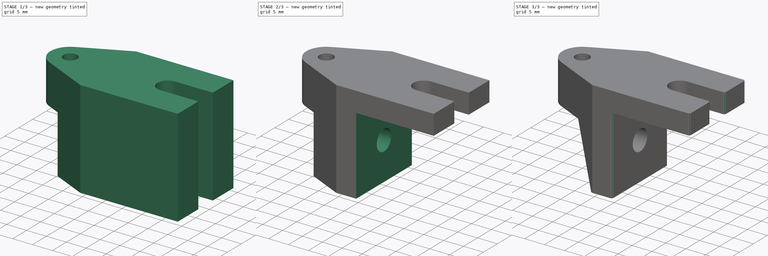
[diagram: build sequence overview — one tinted view per stage of 3, left to right]
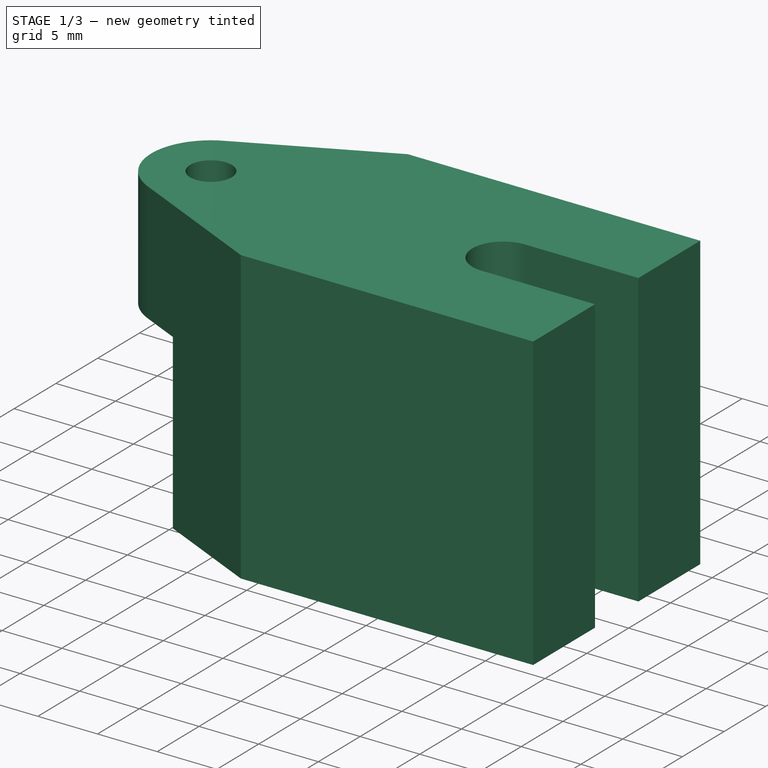
[diagram: stage 1 of 3 — iso view after this stage's code; geometry added in this stage tinted green]
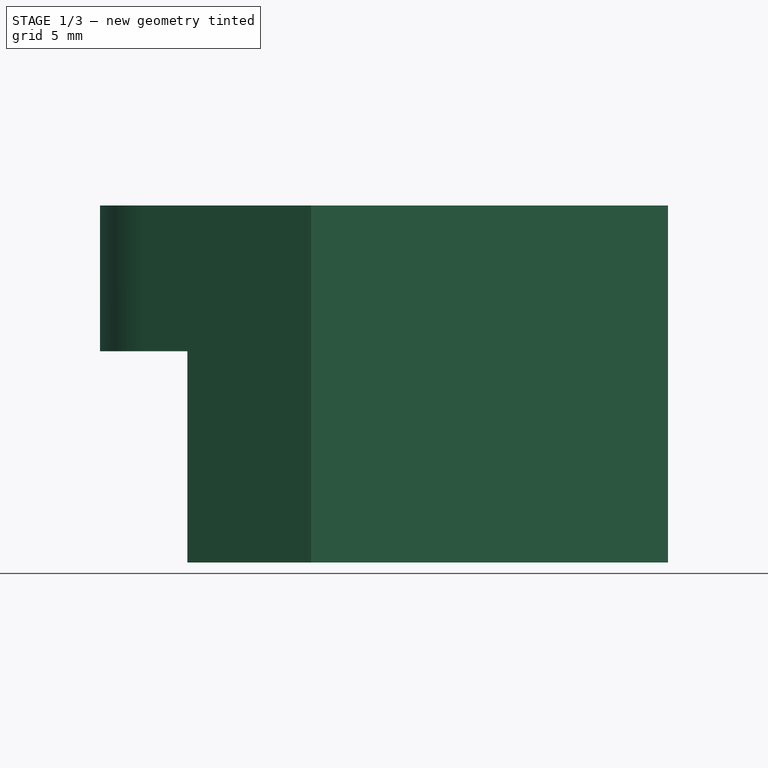
[diagram: stage 1 of 3 — front view after this stage's code; geometry added in this stage tinted green]
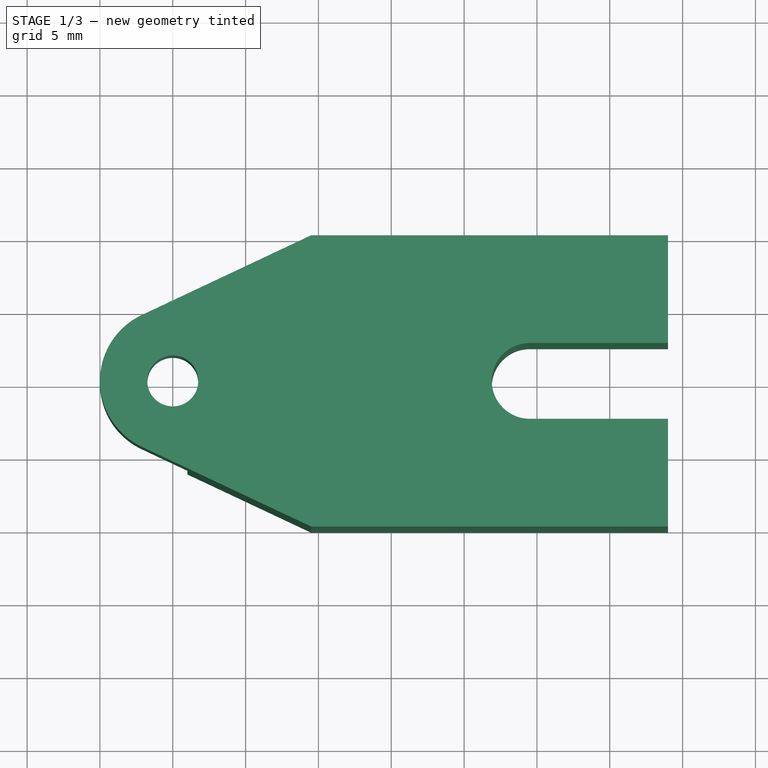
[diagram: stage 1 of 3 — top view after this stage's code; geometry added in this stage tinted green]
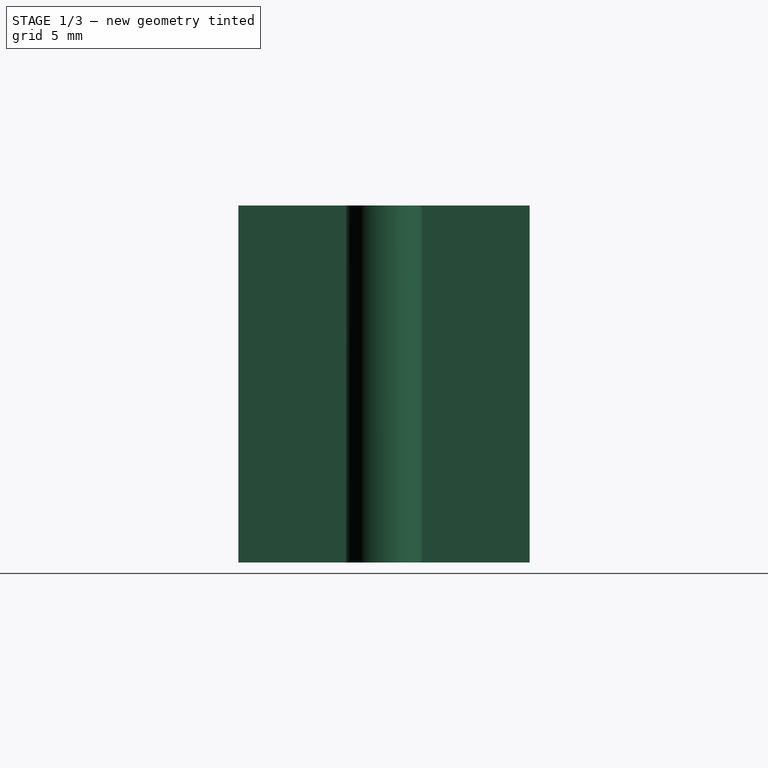
[diagram: stage 1 of 3 — right view after this stage's code; geometry added in this stage tinted green]
FCSTD DOCUMENT  (FreeCAD 0.17R13387 (Git))
Label: BL-Corelia_Bed_holder_bracket
License: All rights reserved
LicenseURL: http://en.wikipedia.org/wiki/All_rights_reserved
objects: Sketcher::SketchObject×5, PartDesign::Pocket×4, PartDesign::Pad×1, PartDesign::Fillet×1, PartDesign::Body×1
note: 17 computed .brp shape members not serialized (recipe doc carries the construction recipe); baked Part::Feature solids carry a one-line shape summary decoded from their .brp

FEATURE [Sketcher::SketchObject] Sketch
  MapMode = 5
  Support = -> [XY_Plane]
  sketch-geometry (13):
    g0: LineSegment StartX=-2.13008 StartY=4.52358 StartZ=0 EndX=9.5 EndY=10 EndZ=0
    g1: LineSegment StartX=9.5 StartY=10 StartZ=0 EndX=34 EndY=10 EndZ=0
    g2: LineSegment StartX=34 StartY=10 StartZ=0 EndX=34 EndY=2.6 EndZ=0
    g3: LineSegment StartX=34 StartY=-10 StartZ=0 EndX=9.5 EndY=-10 EndZ=0
    g4: LineSegment StartX=9.5 StartY=-10 StartZ=0 EndX=-2.13008 EndY=-4.52358 EndZ=0
    g5: LineSegment StartX=24.5 StartY=2.6 StartZ=0 EndX=34 EndY=2.6 EndZ=0
    g6: LineSegment StartX=24.5 StartY=-2.6 StartZ=0 EndX=34 EndY=-2.6 EndZ=0
    g7: LineSegment StartX=34 StartY=-2.6 StartZ=0 EndX=34 EndY=-10 EndZ=0
    g8: ArcOfCircle CenterX=0 CenterY=0 CenterZ=0 NormalX=0 NormalY=0 NormalZ=1 AngleXU=0 Radius=5 StartAngle=2.01088 EndAngle=4.2723
    g9: ArcOfCircle CenterX=24.5 CenterY=0 CenterZ=0 NormalX=0 NormalY=0 NormalZ=1 AngleXU=0 Radius=2.6 StartAngle=1.5708 EndAngle=4.71239
    g10: LineSegment [constr] StartX=24.5 StartY=2.6 StartZ=0 EndX=24.5 EndY=-2.6 EndZ=0
    g11: LineSegment [constr] StartX=-2.13008 StartY=4.52358 StartZ=0 EndX=-2.13008 EndY=-4.52358 EndZ=0
    g12: Circle CenterX=0 CenterY=0 CenterZ=0 NormalX=0 NormalY=0 NormalZ=1 AngleXU=0 Radius=1.75
  constraints (37):
    c: DistanceX(g9) = 24.5
    c: Radius(g8) = 5
    c: DistanceX(g0) = 9.5
    c: DistanceY(g1) = 10
    c: DistanceX(g1) = 34
    c: Equal(g2,g7)
    c: Equal(g1,g3)
    c: Equal(g4,g0)
    c: Equal(g5,g6)
    c: Horizontal(g5)
    c: Horizontal(g1)
    c: Horizontal(g3)
    c: Vertical(g2)
    c: Vertical(g7)
    c: Horizontal(g6)
    c: Coincident(g2,g5)
    c: Coincident(g5,g9)
    c: Coincident(g6,g9)
    c: DistanceX(g5,g5) = 9.5
    c: DistanceY(g6,g2) = 5.2
    c: Coincident(g6,g7)
    c: Coincident(g7,g3)
    c: Coincident(g4,g3)
    c: Coincident(g0,g1)
    c: Coincident(g4,g8)
    c: Coincident(g10,g5)
    c: Coincident(g10,g6)
    c: Vertical(g10)
    c: Coincident(g11,g0)
    c: Coincident(g11,g4)
    c: Vertical(g11)
    c: Coincident(g1,g2)
    c: PointOnObject(g9,g-1)
    c: Coincident(g8,g-1)
    c: Tangent(g8,g0) = 1.5708
    c: Radius(g12) = 1.75
    c: Coincident(g12,g-1)
FEATURE [PartDesign::Pad] Pad
  Length = 24.5
  Length2 = 100
  Profile = -> Sketch
  Type = 0
FEATURE [Sketcher::SketchObject] Sketch001
  MapMode = 5
  Placement = pos=(0,0,0) rot=(1,0,0;3.14159rad)
  Support = -> [Pad]
  sketch-geometry (4):
    g0: LineSegment StartX=-5.5 StartY=6 StartZ=0 EndX=9.5 EndY=6 EndZ=0
    g1: LineSegment StartX=9.5 StartY=6 StartZ=0 EndX=9.5 EndY=-6 EndZ=0
    g2: LineSegment StartX=9.5 StartY=-6 StartZ=0 EndX=-5.5 EndY=-6 EndZ=0
    g3: LineSegment StartX=-5.5 StartY=-6 StartZ=0 EndX=-5.5 EndY=6 EndZ=0
  constraints (12):
    c: Coincident(g0,g1)
    c: Coincident(g1,g2)
    c: Coincident(g2,g3)
    c: Coincident(g3,g0)
    c: Horizontal(g0)
    c: Horizontal(g2)
    c: Vertical(g1)
    c: Vertical(g3)
    c: Symmetric(g0,g2,g-1)
    c: DistanceY(g3,g3) = 12
    c: DistanceX(g0,g0) = 15
    c: DistanceX(g1) = 9.5
FEATURE [PartDesign::Pocket] Pocket
  BaseFeature = -> Pad
  Length = 14.5
  Length2 = 100
  Profile = -> Sketch001
  Type = 0
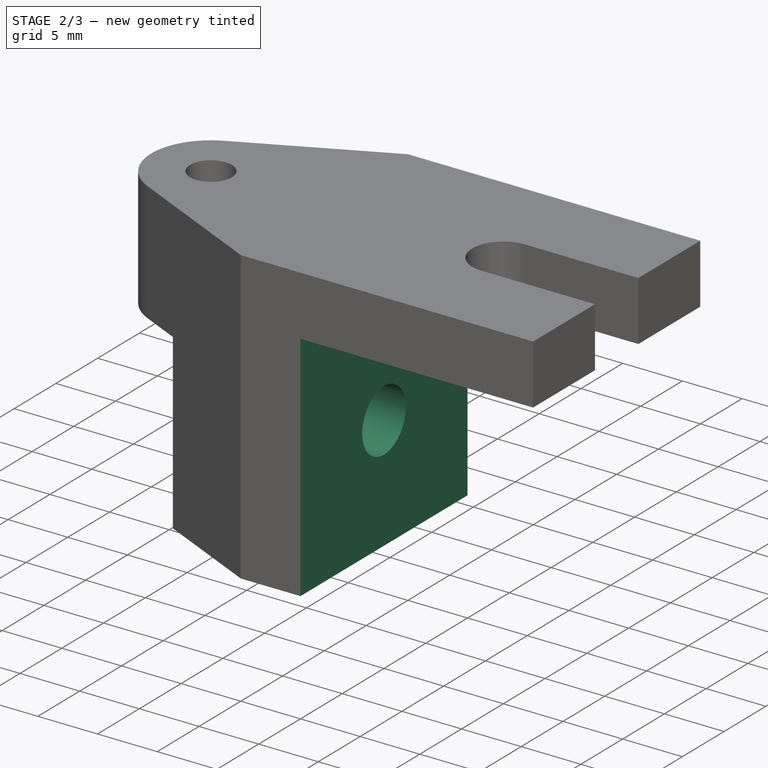
[diagram: stage 2 of 3 — iso view after this stage's code; geometry added in this stage tinted green]
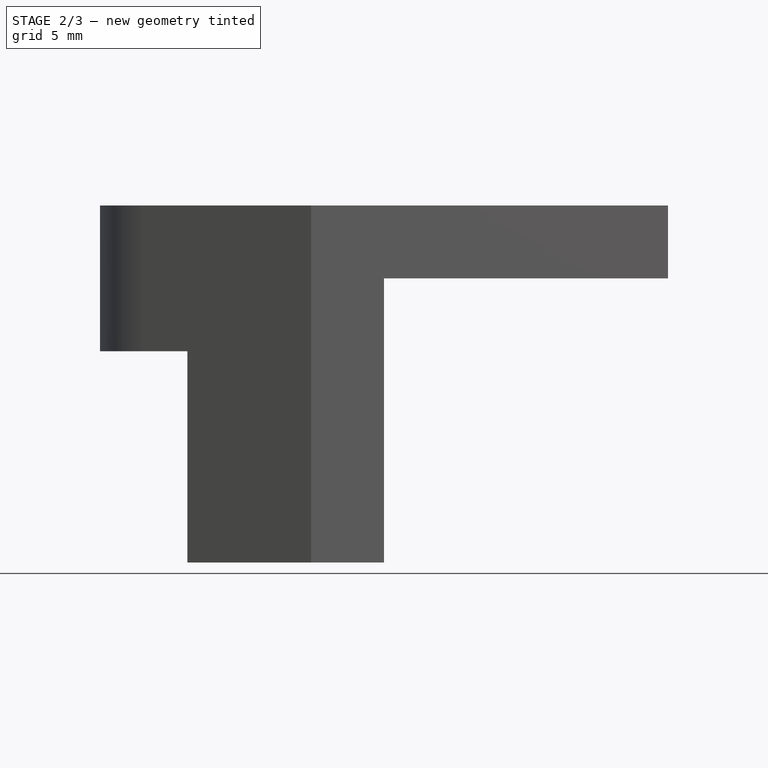
[diagram: stage 2 of 3 — front view after this stage's code; geometry added in this stage tinted green]
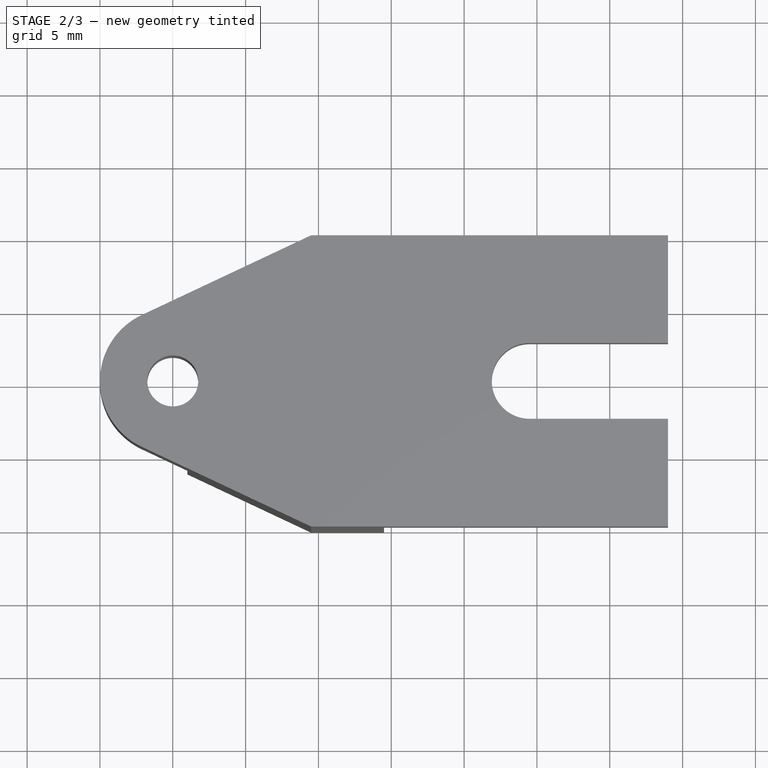
[diagram: stage 2 of 3 — top view after this stage's code; geometry added in this stage tinted green]
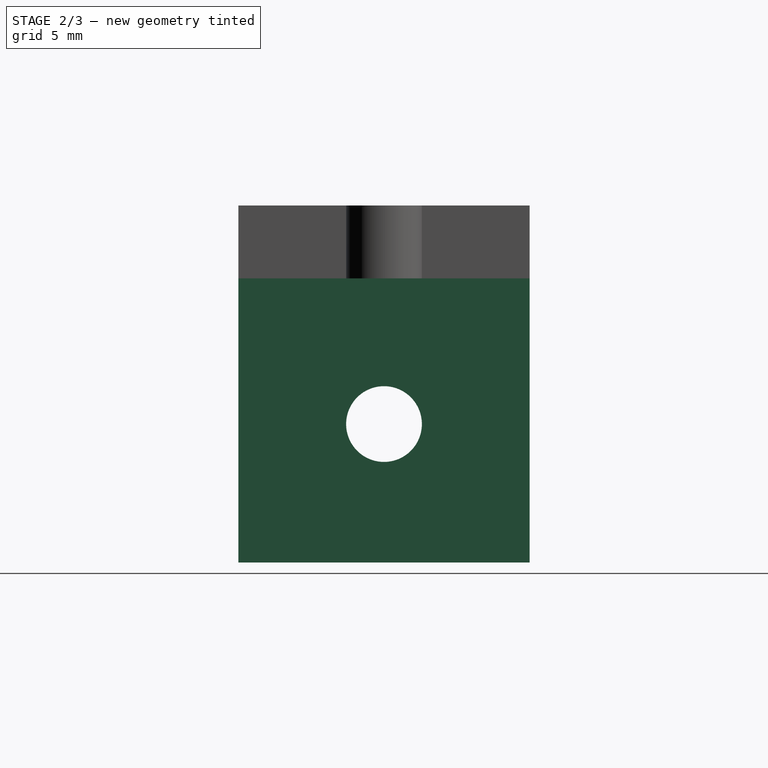
[diagram: stage 2 of 3 — right view after this stage's code; geometry added in this stage tinted green]
FEATURE [Sketcher::SketchObject] Sketch002
  MapMode = 5
  Placement = pos=(0,0,0) rot=(1,0,0;3.14159rad)
  Support = -> [Pocket]
  sketch-geometry (4):
    g0: LineSegment StartX=14.5 StartY=10 StartZ=0 EndX=34.5 EndY=10 EndZ=0
    g1: LineSegment StartX=34.5 StartY=10 StartZ=0 EndX=34.5 EndY=-10 EndZ=0
    g2: LineSegment StartX=34.5 StartY=-10 StartZ=0 EndX=14.5 EndY=-10 EndZ=0
    g3: LineSegment StartX=14.5 StartY=-10 StartZ=0 EndX=14.5 EndY=10 EndZ=0
  constraints (12):
    c: Coincident(g0,g1)
    c: Coincident(g1,g2)
    c: Coincident(g2,g3)
    c: Coincident(g3,g0)
    c: Horizontal(g0)
    c: Horizontal(g2)
    c: Vertical(g1)
    c: Vertical(g3)
    c: Symmetric(g0,g2,g-1)
    c: DistanceY(g1,g1) = 20
    c: DistanceX(g0) = 14.5
    c: DistanceX(g0,g0) = 20
FEATURE [PartDesign::Pocket] Pocket001
  BaseFeature = -> Pocket
  Length = 19.5
  Length2 = 100
  Profile = -> Sketch002
  Type = 0
FEATURE [Sketcher::SketchObject] Sketch003
  MapMode = 5
  Placement = pos=(9.5,0,0) rot=(0.57735,-0.57735,-0.57735;2.0944rad)
  Support = -> [Pocket001]
  sketch-geometry (1):
    g0: Circle CenterX=0 CenterY=9.5 CenterZ=0 NormalX=0 NormalY=0 NormalZ=1 AngleXU=0 Radius=2.6
  constraints (3):
    c: PointOnObject(g0,g-2)
    c: DistanceY(g0) = 9.5
    c: Radius(g0) = 2.6
FEATURE [PartDesign::Pocket] Pocket002
  BaseFeature = -> Pocket001
  Length = 5
  Length2 = 100
  Profile = -> Sketch003
  Type = 1
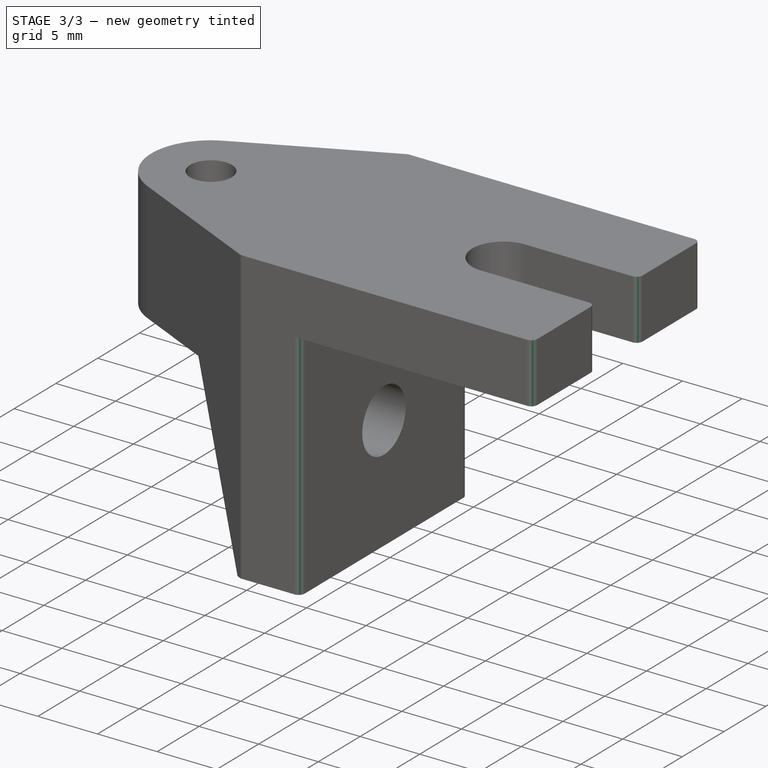
[diagram: stage 3 of 3 — iso view after this stage's code; geometry added in this stage tinted green]
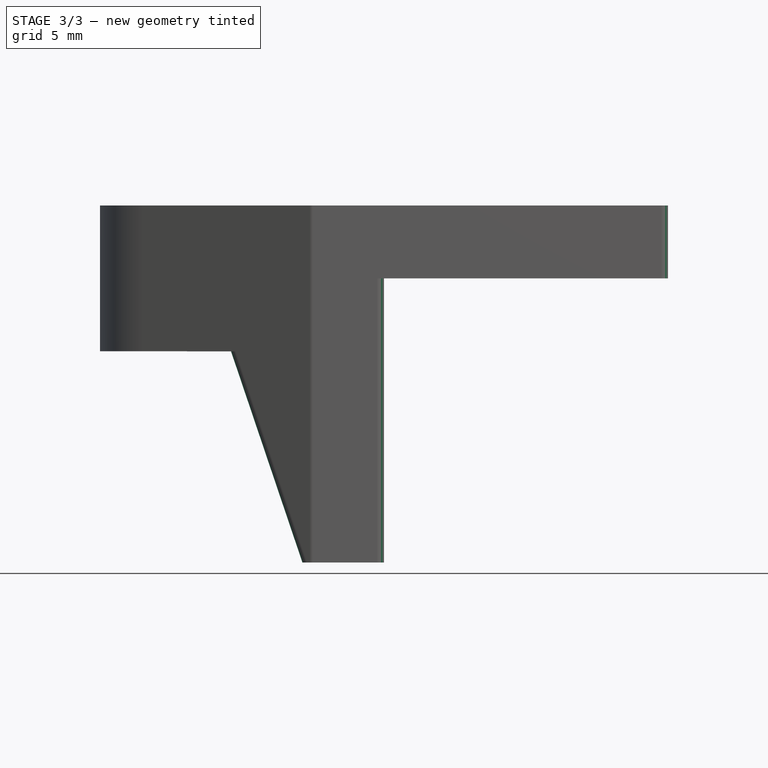
[diagram: stage 3 of 3 — front view after this stage's code; geometry added in this stage tinted green]
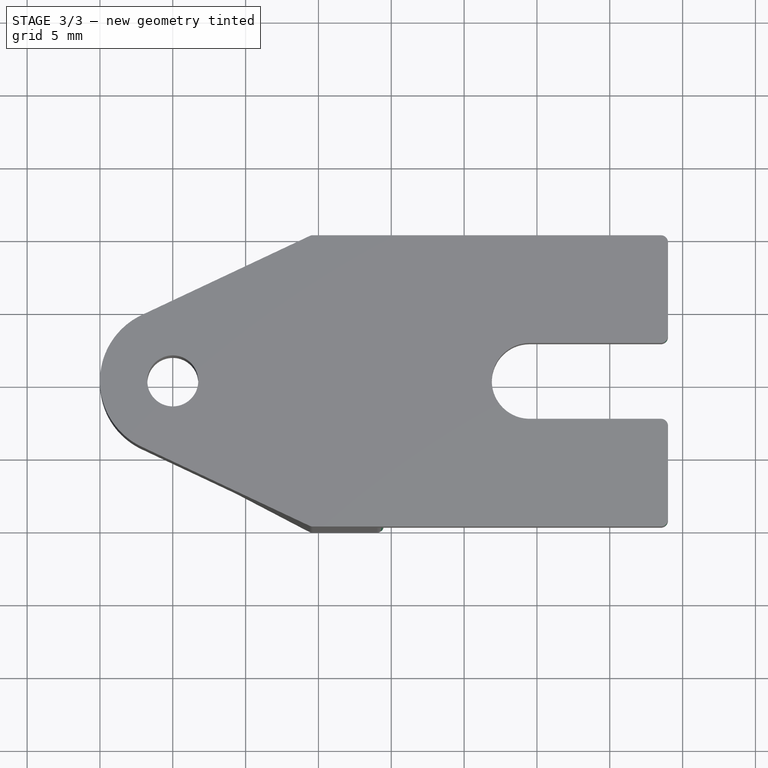
[diagram: stage 3 of 3 — top view after this stage's code; geometry added in this stage tinted green]
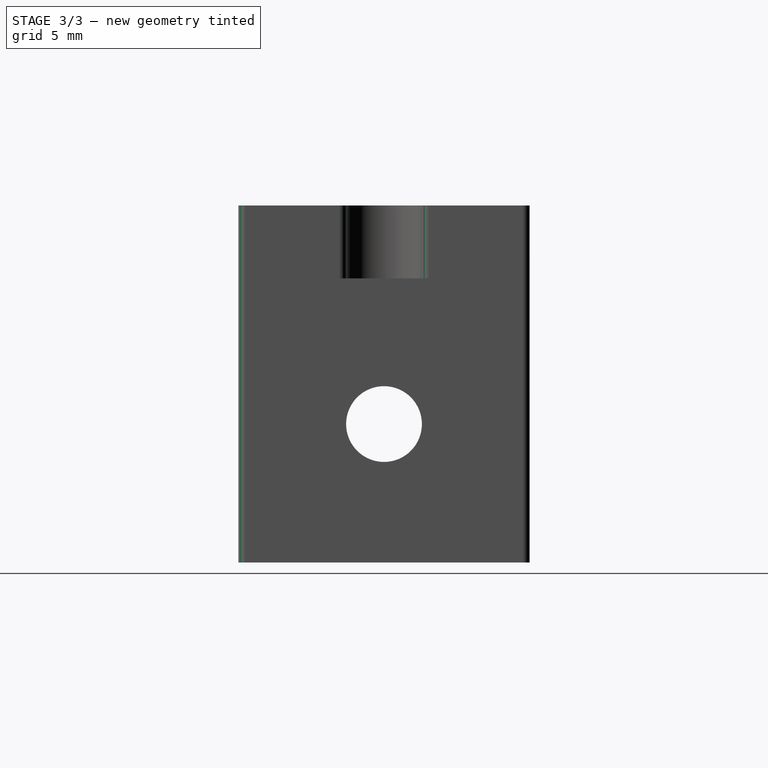
[diagram: stage 3 of 3 — right view after this stage's code; geometry added in this stage tinted green]
FEATURE [Sketcher::SketchObject] Sketch004
  MapMode = 5
  Placement = pos=(0,10,0) rot=(0,0.707107,0.707107;3.14159rad)
  Support = -> [Pocket002]
  sketch-geometry (4):
    g0: LineSegment StartX=-8.9 StartY=0 StartZ=0 EndX=-4 EndY=14.49 EndZ=0
    g1: LineSegment StartX=-8.9 StartY=0 StartZ=0 EndX=0 EndY=0 EndZ=0
    g2: LineSegment StartX=-4 StartY=14.49 StartZ=0 EndX=0 EndY=14.49 EndZ=0
    g3: LineSegment StartX=0 StartY=14.49 StartZ=0 EndX=0 EndY=0 EndZ=0
  constraints (11):
    c: Coincident(g1,g0)
    c: Horizontal(g1)
    c: Coincident(g2,g0)
    c: Horizontal(g2)
    c: Coincident(g3,g2)
    c: Coincident(g3,g-1)
    c: Coincident(g1,g-1)
    c: Vertical(g3)
    c: DistanceY(g3,g3) = 14.49
    c: DistanceX(g1,g1) = 8.9
    c: DistanceX(g2,g2) = 4
FEATURE [PartDesign::Pocket] Pocket003
  BaseFeature = -> Pocket002
  Length = 5
  Length2 = 100
  Profile = -> Sketch004
  Type = 1
FEATURE [PartDesign::Fillet] Fillet
  Base = -> Pocket003 [Edge42,Edge49,Edge16,Edge4,Edge53,Edge28,Edge65,Edge62,Edge45,Edge6,Edge54,Edge30]
  BaseFeature = -> Pocket003
  Radius = 0.5
FEATURE [PartDesign::Body] Body
  Group = -> [Sketch,Pad,Sketch001,Pocket,Sketch002,Pocket001,Sketch003,Pocket002,Sketch004,Pocket003,Fillet]
  Origin = -> Origin
  Tip = -> Fillet
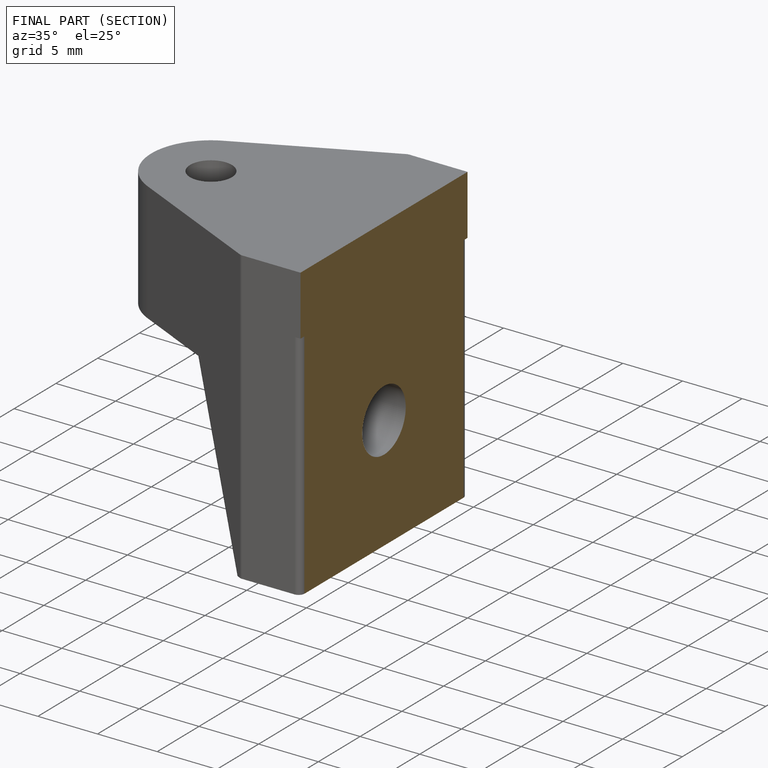
[diagram: finished part — half-section view (interior)]
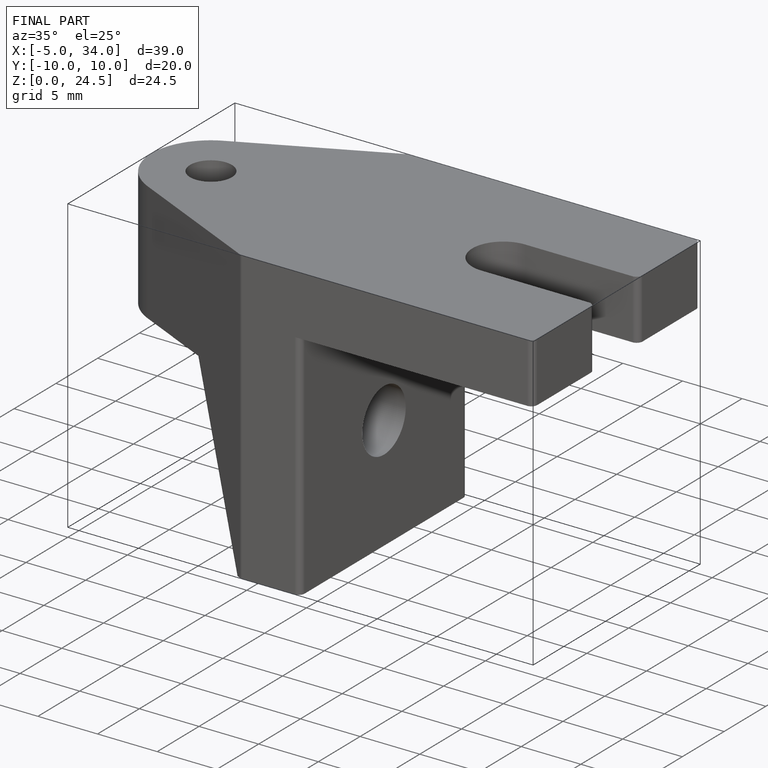
[diagram: finished part — iso view with bounding-box wireframe]
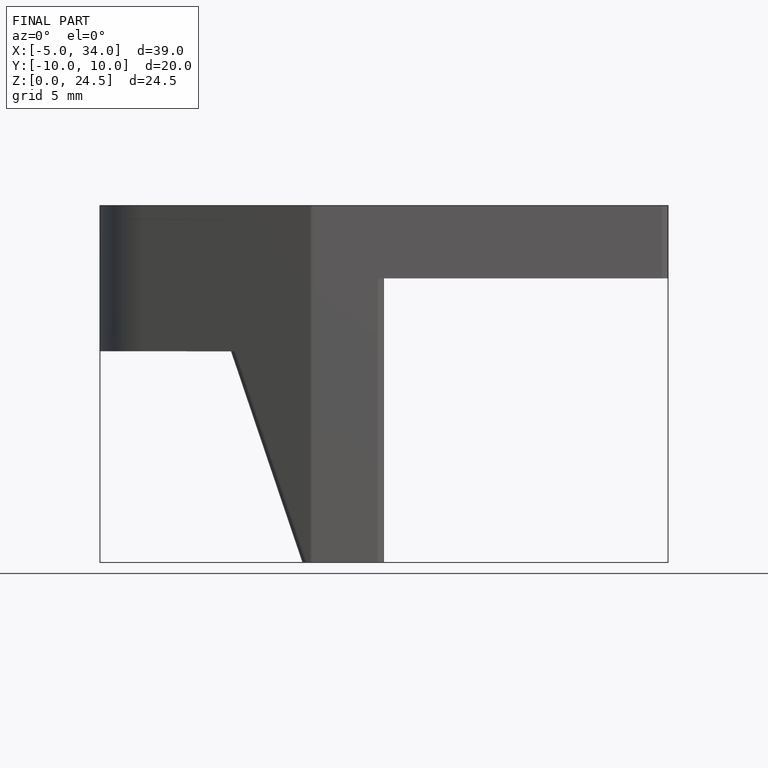
[diagram: finished part — front view with bounding-box wireframe]
